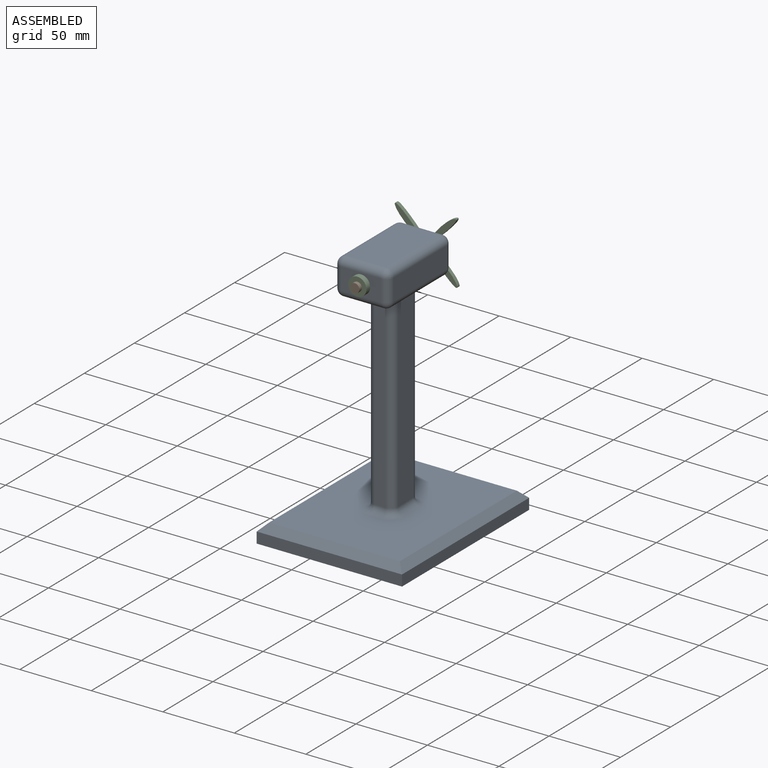
[diagram: assembled view]
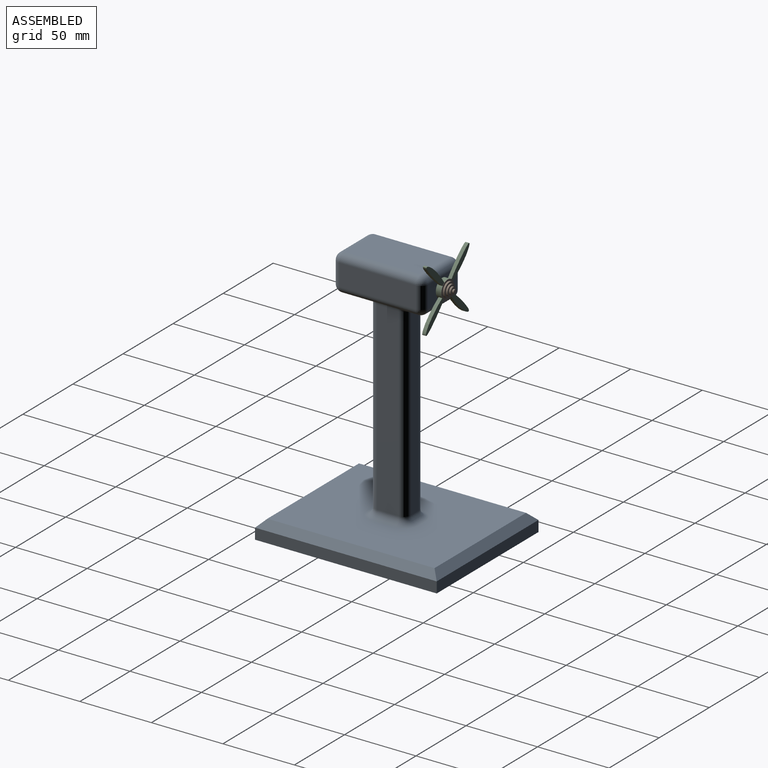
[diagram: assembled view, second angle]
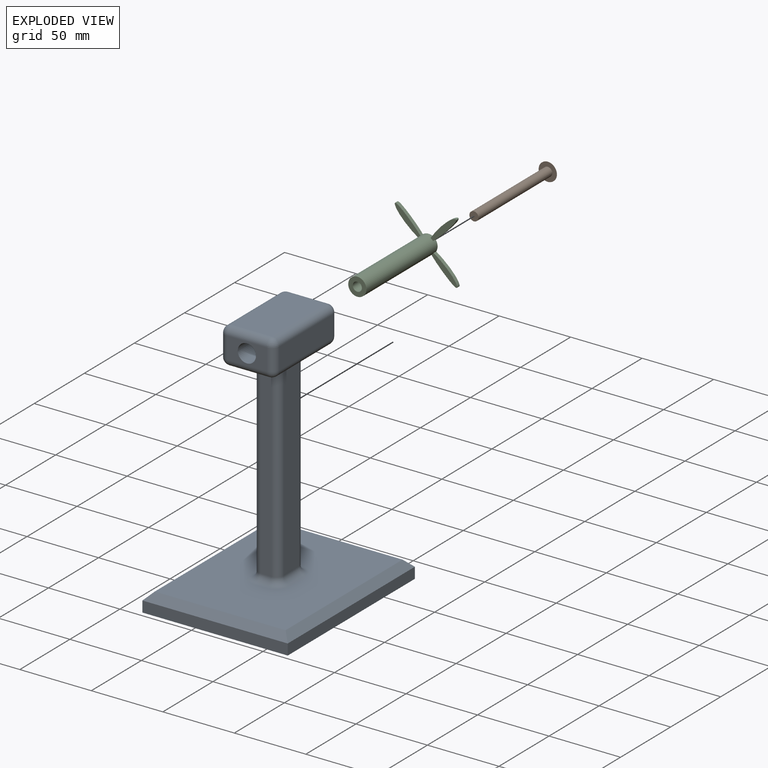
[diagram: exploded view]
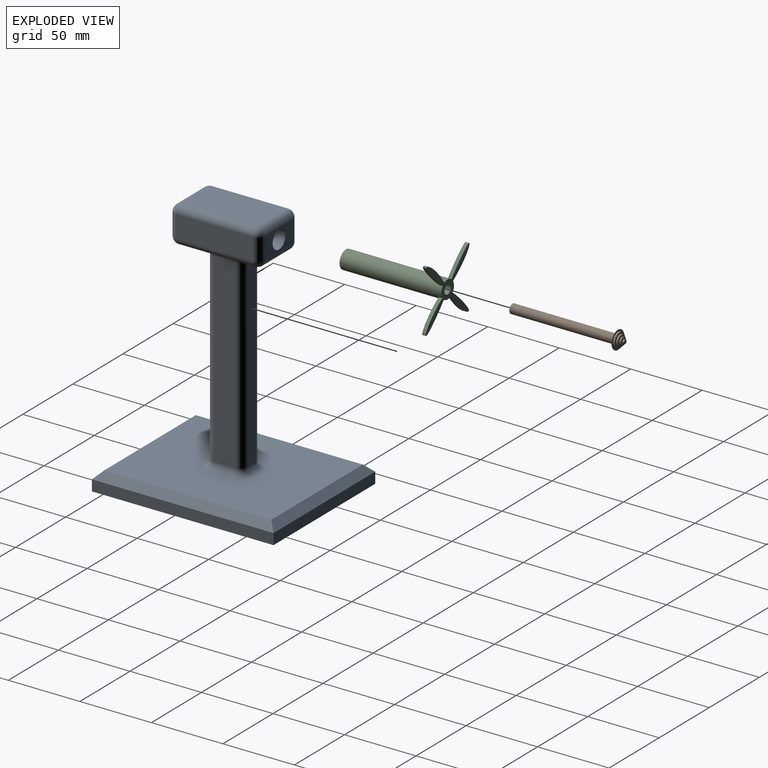
[diagram: exploded view, second angle]
ASSEMBLY  parts=3 mates=2
PART A: 62 faces, bbox 101.6x127x177.8 mm
  f0: plane 27.94x19.05mm, normal (0,0,-1), area 292.7mm2, adj f33,f34,f39,f40,f44,f49
  f1: plane 116.84x91.44mm, normal (0,0,1), area 9778.9mm2, adj f46,f47,f50,f51,f54,f55,f56,f57
  f2: plane 127x7.62mm, normal (-1,0,0), area 967.7mm2, adj f3,f5,f6,f60
  f3: plane 127x101.6mm, normal (0,0,-1), area 12903.2mm2, adj f2,f4,f5,f6
  f4: plane 127x7.62mm, normal (1,0,0), area 967.7mm2, adj f3,f5,f6,f59
  f5: plane 101.6x7.62mm, normal (0,-1,0), area 774.2mm2, adj f2,f3,f4,f61
  f6: plane 101.6x7.62mm, normal (0,1,0), area 774.2mm2, adj f2,f3,f4,f58
  f7: plane 129.54x15.24mm, normal (1,0,0), area 1974.2mm2, adj f43,f52,f53,f57
  f8: plane 129.54x15.24mm, normal (-1,0,0), area 1974.2mm2, adj f37,f41,f45,f46
  f9: plane 129.54x7.62mm, normal (0,-1,0), area 987.1mm2, adj f41,f42,f51,f52
  f10: plane 129.54x7.62mm, normal (0,1,0), area 987.1mm2, adj f44,f45,f53,f54
  f11: plane 27.94x19.05mm, normal (0,0,-1), area 292.7mm2, adj f30,f34,f38,f39,f42,f48
  f12: plane 53.34x15.24mm, normal (1,0,0), area 812.9mm2, adj f22,f31,f32,f39
  f13: plane 53.34x27.94mm, normal (0,0,1), area 1490.3mm2, adj f18,f21,f22,f23
  f14: plane 53.34x15.24mm, normal (-1,0,0), area 812.9mm2, adj f18,f24,f25,f34
  f15: plane 27.94x15.24mm, normal (0,-1,0), area 299.1mm2, adj f17,f21,f25,f30,f31
  f16: plane 27.94x15.24mm, normal (0,1,0), area 299.1mm2, adj f17,f23,f24,f32,f33
  f17: cylinder r=6.35mm len=63.5mm, axis (0,-1,0), area 2533.5mm2, adj f15,f16
  f18: cylinder r=5.08mm len=53.34mm, axis (0,-1,0), area 425.6mm2, adj f13,f14,f19,f20
  f19: sphere r=5.08mm, area 40.5mm2, adj f18,f23,f24
  f20: sphere r=5.08mm, area 40.5mm2, adj f18,f21,f25
  f21: cylinder r=5.08mm len=27.94mm, axis (1,0,0), area 223mm2, adj f13,f15,f20,f26
  f22: cylinder r=5.08mm len=53.34mm, axis (0,1,0), area 425.6mm2, adj f12,f13,f26,f27
  f23: cylinder r=5.08mm len=27.94mm, axis (-1,0,0), area 223mm2, adj f13,f16,f19,f27
  f24: cylinder r=5.08mm len=15.24mm, axis (0,0,-1), area 121.6mm2, adj f14,f16,f19,f28
  f25: cylinder r=5.08mm len=15.24mm, axis (0,0,1), area 121.6mm2, adj f14,f15,f20,f29
  f26: sphere r=5.08mm, area 40.5mm2, adj f21,f22,f31
  f27: sphere r=5.08mm, area 40.5mm2, adj f22,f23,f32
  f28: sphere r=5.08mm, area 40.5mm2, adj f24,f33,f34
  f29: sphere r=5.08mm, area 40.5mm2, adj f25,f30,f34
  f30: cylinder r=5.08mm len=27.94mm, axis (-1,0,0), area 223mm2, adj f11,f15,f29,f35
  f31: cylinder r=5.08mm len=15.24mm, axis (0,0,-1), area 121.6mm2, adj f12,f15,f26,f35
  f32: cylinder r=5.08mm len=15.24mm, axis (0,0,1), area 121.6mm2, adj f12,f16,f27,f36
  f33: cylinder r=5.08mm len=27.94mm, axis (1,0,0), area 223mm2, adj f0,f16,f28,f36
  f34: cylinder r=5.08mm len=53.34mm, axis (0,1,0), area 425.6mm2, adj f0,f11,f14,f28,f29,f37
  f35: sphere r=5.08mm, area 40.5mm2, adj f30,f31,f39
  f36: sphere r=5.08mm, area 40.5mm2, adj f32,f33,f39
  f37: cylinder r=5.08mm len=15.24mm, axis (0,-1,0), area 121.6mm2, adj f8,f34,f38,f40
  f38: torus R=10.16mm, axis (0,0,-1), area 86.8mm2, adj f11,f37,f41,f42
  f39: cylinder r=5.08mm len=53.34mm, axis (0,-1,0), area 425.6mm2, adj f0,f11,f12,f35,f36,f43
  f40: torus R=10.16mm, axis (0,0,-1), area 86.8mm2, adj f0,f37,f44,f45
  f41: cylinder r=5.08mm len=129.54mm, axis (0,0,1), area 1033.7mm2, adj f8,f9,f38,f47
  f42: cylinder r=5.08mm len=7.62mm, axis (1,0,0), area 60.8mm2, adj f9,f11,f38,f48
  f43: cylinder r=5.08mm len=15.24mm, axis (0,1,0), area 121.6mm2, adj f7,f39,f48,f49
  f44: cylinder r=5.08mm len=7.62mm, axis (-1,0,0), area 60.8mm2, adj f0,f10,f40,f49
  f45: cylinder r=5.08mm len=129.54mm, axis (0,0,-1), area 1033.7mm2, adj f8,f10,f40,f50
  f46: cylinder r=5.08mm len=15.24mm, axis (0,1,0), area 121.6mm2, adj f1,f8,f47,f50
  f47: torus R=10.16mm, axis (0,0,-1), area 86.8mm2, adj f1,f41,f46,f51
  f48: torus R=10.16mm, axis (0,0,-1), area 86.8mm2, adj f11,f42,f43,f52
  f49: torus R=10.16mm, axis (0,0,-1), area 86.8mm2, adj f0,f43,f44,f53
  f50: torus R=10.16mm, axis (0,0,-1), area 86.8mm2, adj f1,f45,f46,f54
  f51: cylinder r=5.08mm len=7.62mm, axis (-1,0,0), area 60.8mm2, adj f1,f9,f47,f55
  f52: cylinder r=5.08mm len=129.54mm, axis (0,0,-1), area 1033.7mm2, adj f7,f9,f48,f55
  f53: cylinder r=5.08mm len=129.54mm, axis (0,0,1), area 1033.7mm2, adj f7,f10,f49,f56
  f54: cylinder r=5.08mm len=7.62mm, axis (1,0,0), area 60.8mm2, adj f1,f10,f50,f56
  f55: torus R=10.16mm, axis (0,0,-1), area 86.8mm2, adj f1,f51,f52,f57
  f56: torus R=10.16mm, axis (0,0,-1), area 86.8mm2, adj f1,f53,f54,f57
  f57: cylinder r=5.08mm len=15.24mm, axis (0,-1,0), area 121.6mm2, adj f1,f7,f55,f56
  f58: plane 101.6x5.08mm, normal (0,0.71,0.71), area 693.4mm2, adj f1,f6,f59,f60
  f59: plane 127x5.08mm, normal (0.71,0,0.71), area 875.9mm2, adj f1,f4,f58,f61
  f60: plane 127x5.08mm, normal (-0.71,0,0.71), area 875.9mm2, adj f1,f2,f58,f61
  f61: plane 101.6x5.08mm, normal (0,-0.71,0.71), area 693.4mm2, adj f1,f5,f59,f60
PART B: 13 faces, bbox 12.7x78.9x12.7 mm
  f0: cylinder r=6.35mm len=12.7mm, axis (0,1,0), area 5.1mm2, adj f1,f2
  f1: plane 12.7x12.7mm, normal (0,-1,0), area 45.5mm2, adj f0,f3
  f2: plane 12.7x12.7mm, normal (0,1,0), area 95mm2, adj f0,f11
  f3: cylinder r=5.08mm len=10.17mm, axis (0,1,0), area 40.6mm2, adj f1,f4
  f4: plane 10.17x10.17mm, normal (0,-1,0), area 35.7mm2, adj f3,f5
  f5: cylinder r=3.81mm len=7.62mm, axis (0,1,0), area 30.4mm2, adj f4,f6
  f6: plane 7.62x7.62mm, normal (0,-1,0), area 25.3mm2, adj f5,f7
  f7: cylinder r=2.54mm len=5.09mm, axis (0,1,0), area 20.3mm2, adj f6,f8
  f8: plane 5.09x5.09mm, normal (0,-1,0), area 15.2mm2, adj f7,f9
  f9: cylinder r=1.27mm len=2.55mm, axis (0,1,0), area 10.2mm2, adj f8,f10
  f10: plane 2.55x2.55mm, normal (0,-1,0), area 5.1mm2, adj f9
  f11: cylinder r=3.17mm len=73.66mm, axis (0,-1,0), area 1469.5mm2, adj f2,f12
  f12: plane 6.35x6.35mm, normal (0,1,0), area 31.7mm2, adj f11
PART C: 12 faces, bbox 62.6x71.1x62.5 mm
  f0: cylinder r=3.17mm len=71.12mm, axis (0,1,0), area 1418.8mm2, adj f2,f3
  f1: cylinder r=6.35mm len=71.12mm, axis (0,1,0), area 2814.5mm2, adj f2,f3,f4,f5,f6,f7,f8,f9
  f2: plane 12.7x12.7mm, normal (0,-1,0), area 95mm2, adj f0,f1
  f3: plane 62.58x62.55mm, normal (0,1,0), area 420.2mm2, adj f0,f1,f5,f7,f9,f11
  f4: plane 26.14x5.91mm, normal (0,-1,0), area 81.3mm2, adj f1,f5
  f5: extruded ~23.99x4.13mm, area 124.5mm2, adj f1,f3,f4
  f6: plane 26.19x5.91mm, normal (0,-1,0), area 81.3mm2, adj f1,f7
  f7: extruded ~24.04x4.13mm, area 124.7mm2, adj f1,f3,f6
  f8: plane 26.18x5.91mm, normal (0,-1,0), area 81.3mm2, adj f1,f9
  f9: extruded ~24.04x4.13mm, area 124.6mm2, adj f1,f3,f8
  f10: plane 26.2x5.91mm, normal (0,-1,0), area 81.3mm2, adj f1,f11
  f11: extruded ~24.06x4.13mm, area 124.6mm2, adj f1,f3,f10
PLACE A t=(-31.36,24.57,-35.36)mm fixed
PLACE B rot(axis=(-0.38,0,-0.92),180deg) t=(-31.36,60.13,123.54)mm
PLACE C rot(axis=(0,-1,0),44.9deg) t=(-31.36,60.13,123.54)mm
MATE revolute C.f0 <-> A.f17  axis (0,1,0) through (-31.36,24.57,123.54)mm
MATE fastened B.f0 <-> C.f0  axis (0,-1,0) through (-31.36,60.13,123.54)mm
